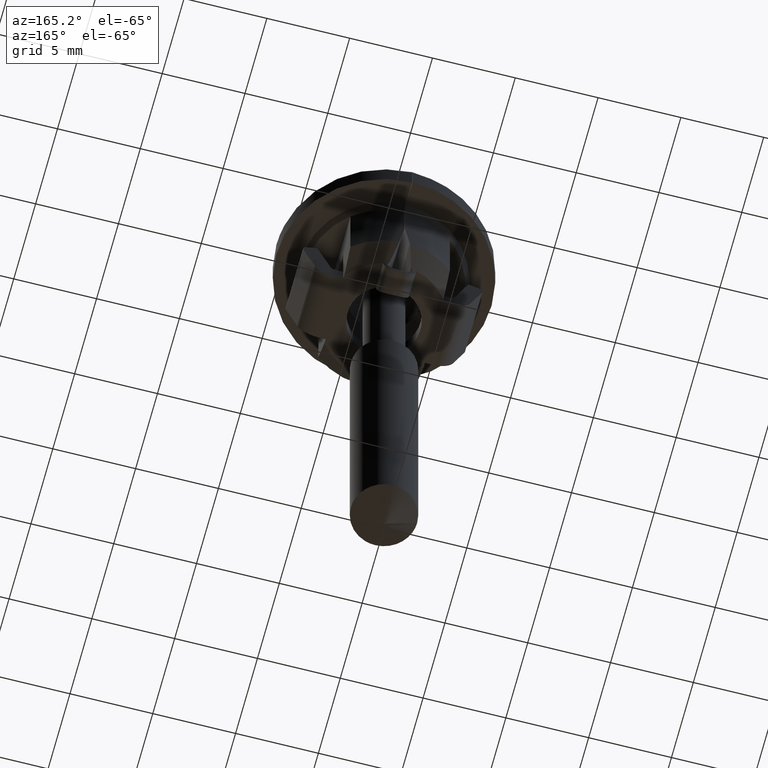
[diagram: clean part render]
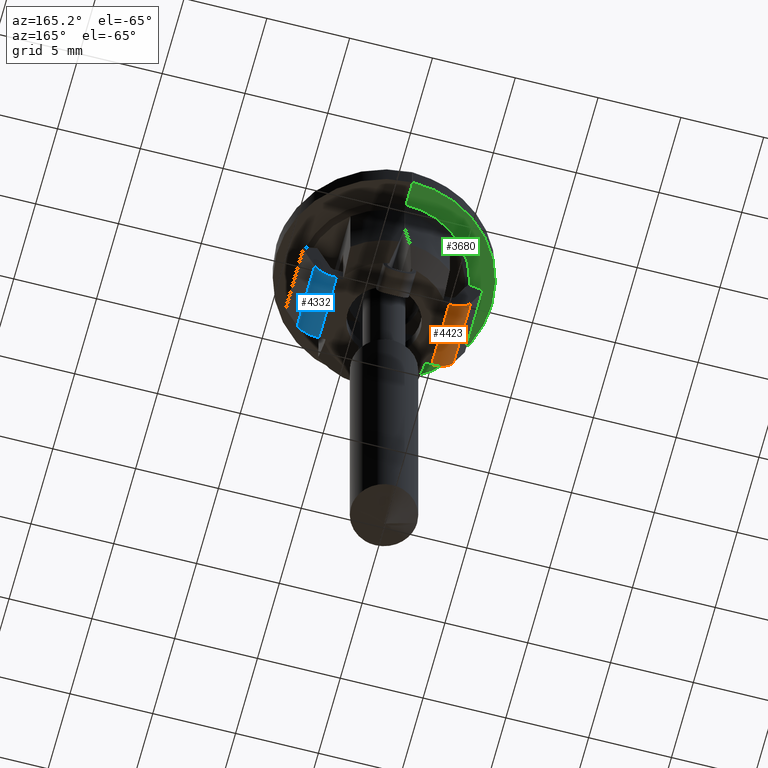
[diagram: same view with three faces highlighted in distinct colors, each labeled with its STEP entity id]
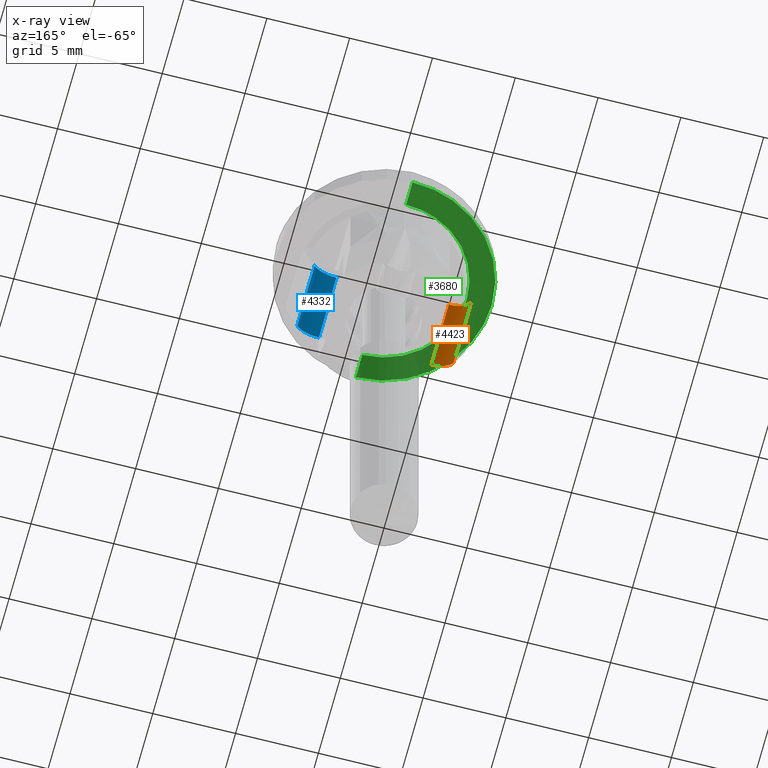
[diagram: x-ray of the same camera — body ghosted, the three highlighted faces saturated]
A machine part, auxiliary view with three faces highlighted in distinct colors.
The next image is the same camera in x-ray (body ghosted, the three faces saturated) — at least one of them is partly hidden behind the body in this view.
Their STEP definitions:

[orange] entity #4423 — the highlighted face is a freeform B-spline surface patch.
#1608=CARTESIAN_POINT('',(-4.715569669100491,-2.000000000000115,-7.278828200655891));
#1609=VERTEX_POINT('',#1608);
#1622=CARTESIAN_POINT('',(-4.715569669100491,2.0,-7.278828200655891));
#1623=VERTEX_POINT('',#1622);
#1629=CARTESIAN_POINT('',(-4.715569669100491,2.0,-7.278828200655891));
#1630=CARTESIAN_POINT('',(-4.715569669100491,-2.000000000000115,-7.278828200655891));
#1631=QUASI_UNIFORM_CURVE('',1,(#1629,#1630),.UNSPECIFIED.,.F.,.U.);
#1632=EDGE_CURVE('',#1623,#1609,#1631,.T.);
#4345=CARTESIAN_POINT('',(-3.400000000000150,-2.000000000000115,-8.200000000000001));
#4346=VERTEX_POINT('',#4345);
#4347=CARTESIAN_POINT('',(-4.715569669100491,-2.000000000000115,-7.278828200655891));
#4348=CARTESIAN_POINT('',(-4.675988249623283,-2.000000000000119,-7.387665476711684));
#4349=CARTESIAN_POINT('',(-4.581853001625567,-2.000000000000110,-7.571432163879083));
#4350=CARTESIAN_POINT('',(-4.370416050399267,-2.000000000000120,-7.826254050321531));
#4351=CARTESIAN_POINT('',(-4.098338636418481,-2.000000000000113,-8.032733743321709));
#4352=CARTESIAN_POINT('',(-3.756327133928439,-2.000000000000116,-8.169988269809767));
#4353=CARTESIAN_POINT('',(-3.515812327138482,-2.000000000000116,-8.200029565077230));
#4354=CARTESIAN_POINT('',(-3.400000000000150,-2.000000000000115,-8.200000000000001));
#4355=B_SPLINE_CURVE_WITH_KNOTS('',3,(#4347,#4348,#4349,#4350,#4351,#4352,#4353,#4354),.UNSPECIFIED.,.F.,.U.,(4,1,1,1,1,4),(0.000000017490958,0.347433329404241,0.614695727174075,0.988845082079796,1.363015322127944,1.710448634041311),.UNSPECIFIED.);
#4356=EDGE_CURVE('',#1609,#4346,#4355,.T.);
#4372=CARTESIAN_POINT('',(-3.400000000000150,2.0,-8.200000000000001));
#4373=VERTEX_POINT('',#4372);
#4379=CARTESIAN_POINT('',(-4.715569669100491,2.0,-7.278828200655891));
#4380=CARTESIAN_POINT('',(-4.675988249623283,2.000000000000002,-7.387665476711684));
#4381=CARTESIAN_POINT('',(-4.581853001625567,1.999999999999997,-7.571432163879083));
#4382=CARTESIAN_POINT('',(-4.370416050399267,2.000000000000004,-7.826254050321531));
#4383=CARTESIAN_POINT('',(-4.098338636418481,1.999999999999998,-8.032733743321709));
#4384=CARTESIAN_POINT('',(-3.756327133928439,2.0,-8.169988269809767));
#4385=CARTESIAN_POINT('',(-3.515812327138482,2.000000000000001,-8.200029565077230));
#4386=CARTESIAN_POINT('',(-3.400000000000150,2.0,-8.200000000000001));
#4387=B_SPLINE_CURVE_WITH_KNOTS('',3,(#4379,#4380,#4381,#4382,#4383,#4384,#4385,#4386),.UNSPECIFIED.,.F.,.U.,(4,1,1,1,1,4),(0.000000017490958,0.347433329404241,0.614695727174075,0.988845082079796,1.363015322127944,1.710448634041311),.UNSPECIFIED.);
#4388=EDGE_CURVE('',#1623,#4373,#4387,.T.);
#4399=CARTESIAN_POINT('',(-3.363352272369125,2.100000000000003,-8.199520254965780));
#4400=CARTESIAN_POINT('',(-3.363352272369125,-2.102500000000119,-8.199520254965780));
#4401=CARTESIAN_POINT('',(-4.432814346018764,2.100000000000004,-8.227525104947592));
#4402=CARTESIAN_POINT('',(-4.432814346018764,-2.102500000000120,-8.227525104947592));
#4403=CARTESIAN_POINT('',(-4.740751023225286,2.100000000000003,-7.202972323765239));
#4404=CARTESIAN_POINT('',(-4.740751023225286,-2.102500000000119,-7.202972323765239));
#4412=(BOUNDED_SURFACE()B_SPLINE_SURFACE(1,2,((#4399,#4401,#4403),(#4400,#4402,#4404)),.UNSPECIFIED.,.F.,.F.,.U.)B_SPLINE_SURFACE_WITH_KNOTS((2,2),(3,3),(0.0,4.202500000000123),(0.0,0.996726258462574),.UNSPECIFIED.)GEOMETRIC_REPRESENTATION_ITEM()RATIONAL_B_SPLINE_SURFACE(((1.0,0.794029848044694,0.998651413916148),(1.0,0.794029848044694,0.998651413916148)))REPRESENTATION_ITEM('')SURFACE());
#4413=ORIENTED_EDGE('',*,*,#4356,.F.);
#4414=ORIENTED_EDGE('',*,*,#1632,.F.);
#4415=ORIENTED_EDGE('',*,*,#4388,.T.);
#4416=CARTESIAN_POINT('',(-3.400000000000150,2.0,-8.200000000000001));
#4417=CARTESIAN_POINT('',(-3.400000000000150,-2.000000000000115,-8.200000000000001));
#4418=QUASI_UNIFORM_CURVE('',1,(#4416,#4417),.UNSPECIFIED.,.F.,.U.);
#4419=EDGE_CURVE('',#4373,#4346,#4418,.T.);
#4420=ORIENTED_EDGE('',*,*,#4419,.T.);
#4421=EDGE_LOOP('',(#4413,#4414,#4415,#4420));
#4422=FACE_OUTER_BOUND('',#4421,.T.);
#4423=ADVANCED_FACE('',(#4422),#4412,.T.);

[blue] entity #4332 — the highlighted face is a freeform B-spline surface patch.
#4067=CARTESIAN_POINT('',(3.400000000000150,-2.000000000000115,-8.200000000000001));
#4068=VERTEX_POINT('',#4067);
#4069=CARTESIAN_POINT('',(4.715569669100491,-2.000000000000115,-7.278828200655891));
#4070=VERTEX_POINT('',#4069);
#4071=CARTESIAN_POINT('',(3.400000000000150,-2.000000000000115,-8.200000000000001));
#4072=CARTESIAN_POINT('',(3.551460153295744,-2.000000000000117,-8.200095402199382));
#4073=CARTESIAN_POINT('',(3.774103986527671,-2.000000000000110,-8.163489528848769));
#4074=CARTESIAN_POINT('',(4.078477373862462,-2.000000000000117,-8.034480921609854));
#4075=CARTESIAN_POINT('',(4.286847548391328,-2.000000000000118,-7.894423841875103));
#4076=CARTESIAN_POINT('',(4.533932863932606,-2.000000000000107,-7.648717758594577));
#4077=CARTESIAN_POINT('',(4.657811639971319,-2.000000000000118,-7.437959532729225));
#4078=CARTESIAN_POINT('',(4.715569669100491,-2.000000000000115,-7.278828200655891));
#4079=B_SPLINE_CURVE_WITH_KNOTS('',3,(#4071,#4072,#4073,#4074,#4075,#4076,#4077,#4078),.UNSPECIFIED.,.F.,.U.,(4,1,1,1,1,4),(0.000000017490640,0.454338714958583,0.668150349099610,0.988845082079774,1.202657637679383,1.710448634041302),.UNSPECIFIED.);
#4080=EDGE_CURVE('',#4068,#4070,#4079,.T.);
#4141=CARTESIAN_POINT('',(3.400000000000150,2.0,-8.200000000000001));
#4142=VERTEX_POINT('',#4141);
#4143=CARTESIAN_POINT('',(4.715569669100491,2.0,-7.278828200655891));
#4144=VERTEX_POINT('',#4143);
#4145=CARTESIAN_POINT('',(3.400000000000150,2.0,-8.200000000000001));
#4146=CARTESIAN_POINT('',(3.551460153295744,2.000000000000002,-8.200095402199382));
#4147=CARTESIAN_POINT('',(3.774103986527671,1.999999999999995,-8.163489528848769));
#4148=CARTESIAN_POINT('',(4.078477373862462,2.000000000000001,-8.034480921609854));
#4149=CARTESIAN_POINT('',(4.286847548391328,2.000000000000003,-7.894423841875103));
#4150=CARTESIAN_POINT('',(4.533932863932606,1.999999999999990,-7.648717758594577));
#4151=CARTESIAN_POINT('',(4.657811639971319,2.000000000000003,-7.437959532729225));
#4152=CARTESIAN_POINT('',(4.715569669100491,2.0,-7.278828200655891));
#4153=B_SPLINE_CURVE_WITH_KNOTS('',3,(#4145,#4146,#4147,#4148,#4149,#4150,#4151,#4152),.UNSPECIFIED.,.F.,.U.,(4,1,1,1,1,4),(0.000000017490640,0.454338714958583,0.668150349099610,0.988845082079774,1.202657637679383,1.710448634041302),.UNSPECIFIED.);
#4154=EDGE_CURVE('',#4142,#4144,#4153,.T.);
#4298=CARTESIAN_POINT('',(4.715569669100491,2.0,-7.278828200655891));
#4299=CARTESIAN_POINT('',(4.715569669100491,-2.000000000000115,-7.278828200655891));
#4300=QUASI_UNIFORM_CURVE('',1,(#4298,#4299),.UNSPECIFIED.,.F.,.U.);
#4301=EDGE_CURVE('',#4144,#4070,#4300,.T.);
#4308=CARTESIAN_POINT('',(4.735203731047667,2.100000000000003,-7.220988119305981));
#4309=CARTESIAN_POINT('',(4.735203731047667,-2.102500000000119,-7.220988119305981));
#4310=CARTESIAN_POINT('',(4.407641707374923,2.100000000000004,-8.259882131038031));
#4311=CARTESIAN_POINT('',(4.407641707374923,-2.102500000000119,-8.259882131038031));
#4312=CARTESIAN_POINT('',(3.320106269174175,2.100000000000003,-8.197718495182313));
#4313=CARTESIAN_POINT('',(3.320106269174175,-2.102500000000119,-8.197718495182313));
#4321=(BOUNDED_SURFACE()B_SPLINE_SURFACE(1,2,((#4308,#4310,#4312),(#4309,#4311,#4313)),.UNSPECIFIED.,.F.,.F.,.U.)B_SPLINE_SURFACE_WITH_KNOTS((2,2),(3,3),(0.0,4.202500000000122),(0.0,0.982841620870307),.UNSPECIFIED.)GEOMETRIC_REPRESENTATION_ITEM()RATIONAL_B_SPLINE_SURFACE(((1.0,0.786338248516843,0.992667821325075),(1.0,0.786338248516843,0.992667821325075)))REPRESENTATION_ITEM('')SURFACE());
#4322=ORIENTED_EDGE('',*,*,#4080,.F.);
#4323=CARTESIAN_POINT('',(3.400000000000150,2.0,-8.200000000000001));
#4324=CARTESIAN_POINT('',(3.400000000000150,-2.000000000000115,-8.200000000000001));
#4325=QUASI_UNIFORM_CURVE('',1,(#4323,#4324),.UNSPECIFIED.,.F.,.U.);
#4326=EDGE_CURVE('',#4142,#4068,#4325,.T.);
#4327=ORIENTED_EDGE('',*,*,#4326,.F.);
#4328=ORIENTED_EDGE('',*,*,#4154,.T.);
#4329=ORIENTED_EDGE('',*,*,#4301,.T.);
#4330=EDGE_LOOP('',(#4322,#4327,#4328,#4329));
#4331=FACE_OUTER_BOUND('',#4330,.T.);
#4332=ADVANCED_FACE('',(#4331),#4321,.T.);

[green] entity #3680 — the highlighted face is a freeform B-spline surface patch.
#3571=CARTESIAN_POINT('',(-0.010000000000000,-6.499999999999930,-2.499999999999901));
#3572=VERTEX_POINT('',#3571);
#3580=CARTESIAN_POINT('',(-0.010000000000000,6.499999999999930,-2.499999999999901));
#3581=VERTEX_POINT('',#3580);
#3587=CARTESIAN_POINT('',(-6.500000011834214,0.000000448896045,-2.499999999999901));
#3588=VERTEX_POINT('',#3587);
#3589=CARTESIAN_POINT('',(-6.500000011834214,0.000000448896045,-2.499999999999901));
#3590=CARTESIAN_POINT('',(-6.500008414031794,0.332032780630470,-2.499999999999913));
#3591=CARTESIAN_POINT('',(-6.440892661028196,1.102367586173073,-2.499999999999883));
#3592=CARTESIAN_POINT('',(-6.175510839840669,2.123034716669607,-2.499999999999916));
#3593=CARTESIAN_POINT('',(-5.795645271457090,2.973719444413601,-2.499999999999892));
#3594=CARTESIAN_POINT('',(-5.417075110332000,3.614963741315071,-2.499999999999894));
#3595=CARTESIAN_POINT('',(-4.884390727155344,4.329665352708902,-2.499999999999941));
#3596=CARTESIAN_POINT('',(-4.244911639341791,4.954597442097149,-2.499999999999897));
#3597=CARTESIAN_POINT('',(-3.490998010701581,5.500545992583628,-2.499999999999896));
#3598=CARTESIAN_POINT('',(-2.898602749933826,5.832161454582116,-2.499999999999882));
#3599=CARTESIAN_POINT('',(-2.213888629512081,6.124109522334353,-2.499999999999882));
#3600=CARTESIAN_POINT('',(-1.298118047004582,6.406277338033410,-2.499999999999912));
#3601=CARTESIAN_POINT('',(-0.514706873547853,6.499332689109147,-2.499999999999891));
#3602=CARTESIAN_POINT('',(-0.010000000000000,6.499999999999930,-2.499999999999901));
#3603=B_SPLINE_CURVE_WITH_KNOTS('',3,(#3589,#3590,#3591,#3592,#3593,#3594,#3595,#3596,#3597,#3598,#3599,#3600,#3601,#3602),.UNSPECIFIED.,.F.,.U.,(4,1,1,1,1,1,1,1,1,1,1,4),(0.000000021823947,0.996103410602817,2.310981825980195,3.147717257196395,3.785229823473050,4.542275963397467,5.817288521096400,6.454804328516416,7.331390446664278,7.849370059472728,8.686106329483279,10.200196050623260),.UNSPECIFIED.);
#3604=EDGE_CURVE('',#3588,#3581,#3603,.T.);
#3606=CARTESIAN_POINT('',(-0.010000000000000,-6.499999999999930,-2.499999999999901));
#3607=CARTESIAN_POINT('',(-0.342034206651963,-6.499502228916208,-2.499999999999896));
#3608=CARTESIAN_POINT('',(-1.059143044641971,-6.443328641542697,-2.499999999999901));
#3609=CARTESIAN_POINT('',(-2.133185878932616,-6.176340642222146,-2.499999999999909));
#3610=CARTESIAN_POINT('',(-3.252599455302479,-5.674527042154796,-2.499999999999916));
#3611=CARTESIAN_POINT('',(-4.147259505419479,-5.043178848896831,-2.499999999999846));
#3612=CARTESIAN_POINT('',(-4.896640519327620,-4.306239859312413,-2.499999999999955));
#3613=CARTESIAN_POINT('',(-5.514242691145992,-3.503787595611053,-2.499999999999862));
#3614=CARTESIAN_POINT('',(-6.020584729238699,-2.534008050746449,-2.499999999999882));
#3615=CARTESIAN_POINT('',(-6.402011834099400,-1.341378615575614,-2.499999999999910));
#3616=CARTESIAN_POINT('',(-6.500124010787016,-0.504708791121940,-2.499999999999899));
#3617=CARTESIAN_POINT('',(-6.500000011834214,0.000000448896045,-2.499999999999901));
#3618=B_SPLINE_CURVE_WITH_KNOTS('',3,(#3606,#3607,#3608,#3609,#3610,#3611,#3612,#3613,#3614,#3615,#3616,#3617),.UNSPECIFIED.,.F.,.U.,(4,1,1,1,1,1,1,1,1,4),(0.000000021835161,0.996103498285999,2.151601804959261,3.307099865083681,4.661811821606073,5.418849624791580,6.454804896655622,7.689992443263819,8.686107094014536,10.200196948419549),.UNSPECIFIED.);
#3619=EDGE_CURVE('',#3572,#3588,#3618,.T.);
#3624=CARTESIAN_POINT('',(0.314175488012240,-7.149349974803400,-2.499999999999901));
#3625=CARTESIAN_POINT('',(-6.824175673921817,-7.149349974803400,-2.499999999999901));
#3626=CARTESIAN_POINT('',(0.314175488012240,7.149350323490571,-2.499999999999901));
#3627=CARTESIAN_POINT('',(-6.824175673921817,7.149350323490571,-2.499999999999901));
#3628=B_SPLINE_SURFACE_WITH_KNOTS('',1,1,((#3624,#3626),(#3625,#3627)),.UNSPECIFIED.,.F.,.F.,.U.,(2,2),(2,2),(0.0,7.138351161934057),(0.0,14.298700298293969),.UNSPECIFIED.);
#3629=CARTESIAN_POINT('',(-0.010000000000000,-4.999989999990000,-2.499999999999901));
#3630=VERTEX_POINT('',#3629);
#3631=CARTESIAN_POINT('',(-0.010000000000000,-6.499999999999930,-2.499999999999901));
#3632=CARTESIAN_POINT('',(-0.010000000000000,-4.999989999990000,-2.499999999999901));
#3633=QUASI_UNIFORM_CURVE('',1,(#3631,#3632),.UNSPECIFIED.,.F.,.U.);
#3634=EDGE_CURVE('',#3572,#3630,#3633,.T.);
#3635=ORIENTED_EDGE('',*,*,#3634,.F.);
#3636=ORIENTED_EDGE('',*,*,#3619,.T.);
#3637=ORIENTED_EDGE('',*,*,#3604,.T.);
#3638=CARTESIAN_POINT('',(-0.010000000000000,4.999989999990000,-2.499999999999901));
#3639=VERTEX_POINT('',#3638);
#3640=CARTESIAN_POINT('',(-0.010000000000000,4.999989999990000,-2.499999999999901));
#3641=CARTESIAN_POINT('',(-0.010000000000000,6.499999999999930,-2.499999999999901));
#3642=QUASI_UNIFORM_CURVE('',1,(#3640,#3641),.UNSPECIFIED.,.F.,.U.);
#3643=EDGE_CURVE('',#3639,#3581,#3642,.T.);
#3644=ORIENTED_EDGE('',*,*,#3643,.F.);
#3645=CARTESIAN_POINT('',(-4.999999999999973,0.000000512747736,-2.499999999999900));
#3646=VERTEX_POINT('',#3645);
#3647=CARTESIAN_POINT('',(-4.999999999999973,0.000000512747736,-2.499999999999900));
#3648=CARTESIAN_POINT('',(-5.000038926805217,0.326832757963428,-2.499999999999908));
#3649=CARTESIAN_POINT('',(-4.935692197440122,0.980487290466630,-2.499999999999891));
#3650=CARTESIAN_POINT('',(-4.667914563545182,1.864459158390216,-2.499999999999911));
#3651=CARTESIAN_POINT('',(-4.281330597737759,2.621941312463861,-2.499999999999905));
#3652=CARTESIAN_POINT('',(-3.847923154854147,3.218683698812516,-2.499999999999897));
#3653=CARTESIAN_POINT('',(-3.264289506338846,3.821776312879880,-2.499999999999911));
#3654=CARTESIAN_POINT('',(-2.565345011800388,4.328241834140599,-2.499999999999897));
#3655=CARTESIAN_POINT('',(-1.774960506225417,4.694542511619776,-2.499999999999902));
#3656=CARTESIAN_POINT('',(-0.949487937604315,4.935389947305365,-2.499999999999899));
#3657=CARTESIAN_POINT('',(-0.367477216199140,4.999339348255866,-2.499999999999902));
#3658=CARTESIAN_POINT('',(-0.010000000000000,4.999989999990000,-2.499999999999901));
#3659=B_SPLINE_CURVE_WITH_KNOTS('',3,(#3647,#3648,#3649,#3650,#3651,#3652,#3653,#3654,#3655,#3656,#3657,#3658),.UNSPECIFIED.,.F.,.U.,(4,1,1,1,1,1,1,1,1,4),(0.000000023318030,0.980492076844078,1.960998419556497,2.757655286090456,3.523678640134846,4.167108351580103,5.270180034382509,6.097480396951537,6.771578432840951,7.843993388175097),.UNSPECIFIED.);
#3660=EDGE_CURVE('',#3646,#3639,#3659,.T.);
#3661=ORIENTED_EDGE('',*,*,#3660,.F.);
#3662=CARTESIAN_POINT('',(-0.010000000000000,-4.999989999990000,-2.499999999999901));
#3663=CARTESIAN_POINT('',(-0.336834644220518,-4.999384422472894,-2.499999999999891));
#3664=CARTESIAN_POINT('',(-0.796330066977515,-4.953182563011099,-2.499999999999912));
#3665=CARTESIAN_POINT('',(-1.471819570414150,-4.789353976264486,-2.499999999999889));
#3666=CARTESIAN_POINT('',(-2.116666022391491,-4.555291790375571,-2.499999999999893));
#3667=CARTESIAN_POINT('',(-2.849387056588061,-4.141882190459396,-2.499999999999925));
#3668=CARTESIAN_POINT('',(-3.511027010329871,-3.590774550170810,-2.499999999999872));
#3669=CARTESIAN_POINT('',(-4.027498597516782,-2.994634525226147,-2.499999999999897));
#3670=CARTESIAN_POINT('',(-4.470814318020262,-2.293491175012058,-2.499999999999910));
#3671=CARTESIAN_POINT('',(-4.765013448886138,-1.582237576089883,-2.499999999999905));
#3672=CARTESIAN_POINT('',(-4.956302919388207,-0.786428513764323,-2.499999999999884));
#3673=CARTESIAN_POINT('',(-5.000024756239860,-0.296192695268010,-2.499999999999927));
#3674=CARTESIAN_POINT('',(-4.999999999999973,0.000000512747736,-2.499999999999900));
#3675=B_SPLINE_CURVE_WITH_KNOTS('',3,(#3662,#3663,#3664,#3665,#3666,#3667,#3668,#3669,#3670,#3671,#3672,#3673,#3674),.UNSPECIFIED.,.F.,.U.,(4,1,1,1,1,1,1,1,1,1,4),(0.000000023314444,0.980492205025285,1.378822641711283,2.083561232227241,3.033423423676291,3.891370848007017,4.657363596601914,5.392742540188809,6.373249091198537,6.955418075881691,7.843994413675387),.UNSPECIFIED.);
#3676=EDGE_CURVE('',#3630,#3646,#3675,.T.);
#3677=ORIENTED_EDGE('',*,*,#3676,.F.);
#3678=EDGE_LOOP('',(#3635,#3636,#3637,#3644,#3661,#3677));
#3679=FACE_OUTER_BOUND('',#3678,.T.);
#3680=ADVANCED_FACE('',(#3679),#3628,.T.);